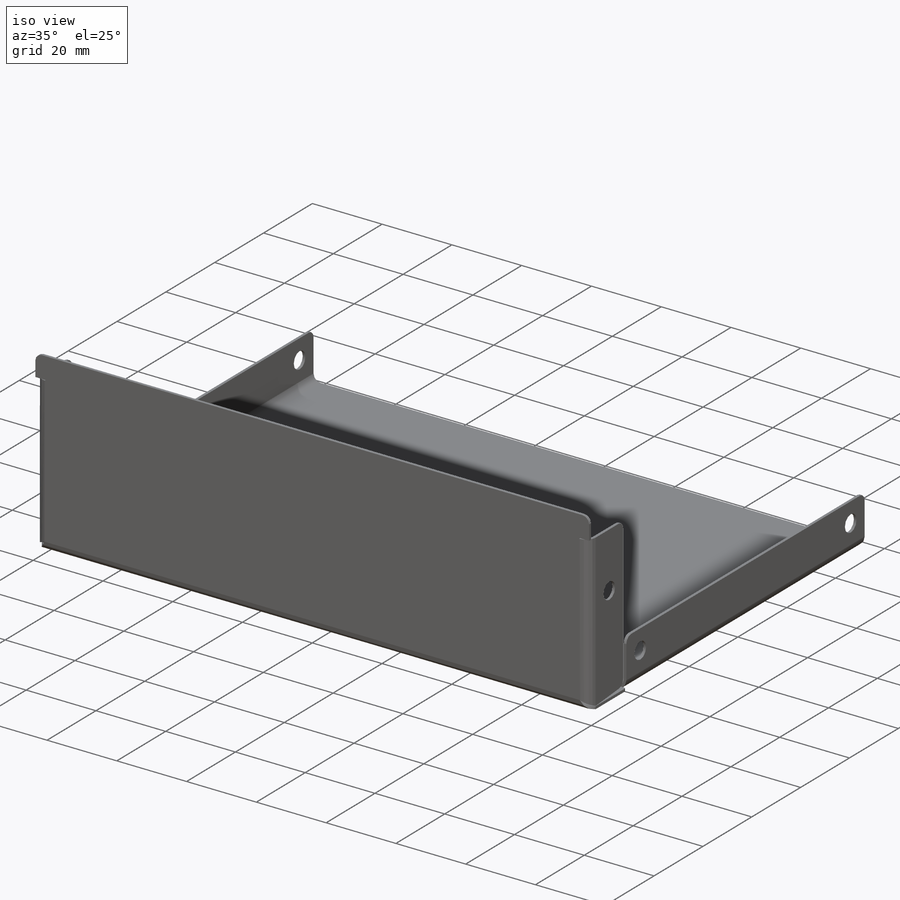
[diagram: iso view]
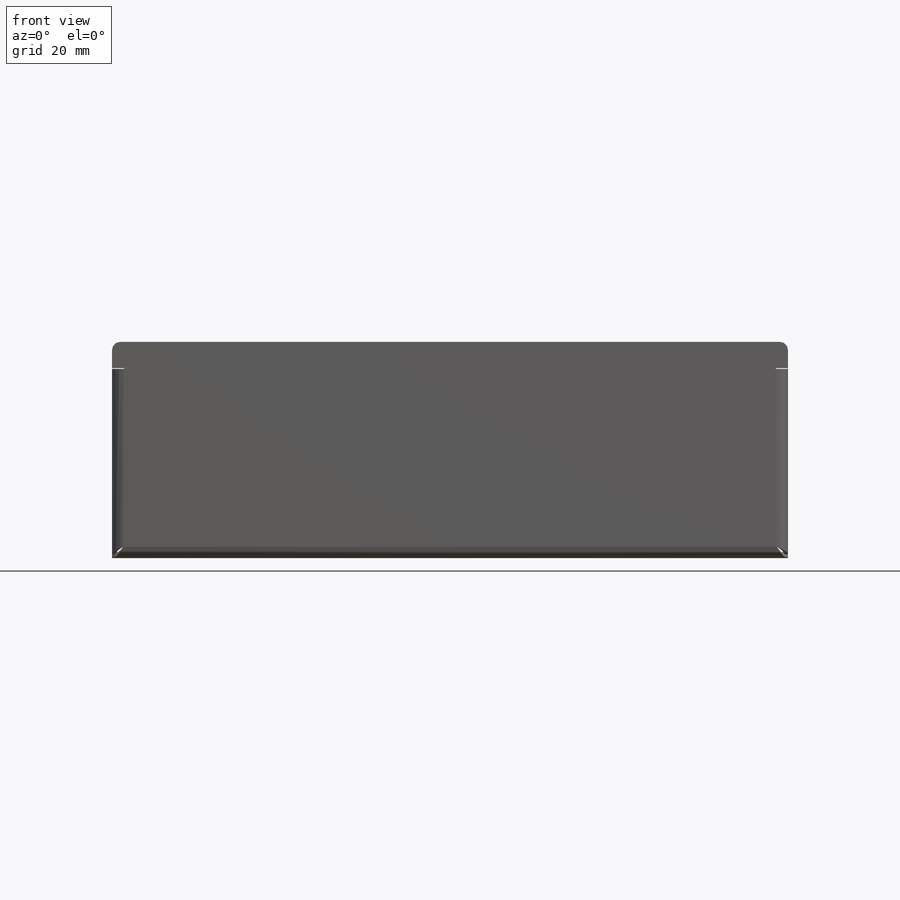
[diagram: front view]
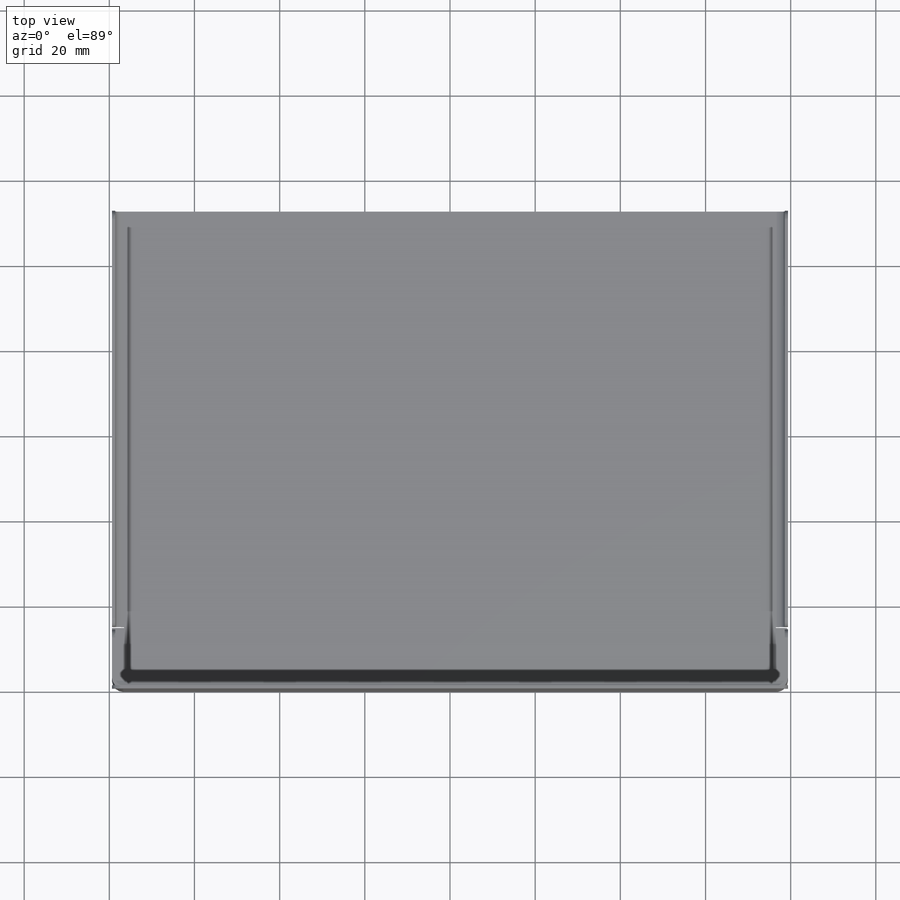
[diagram: top view]
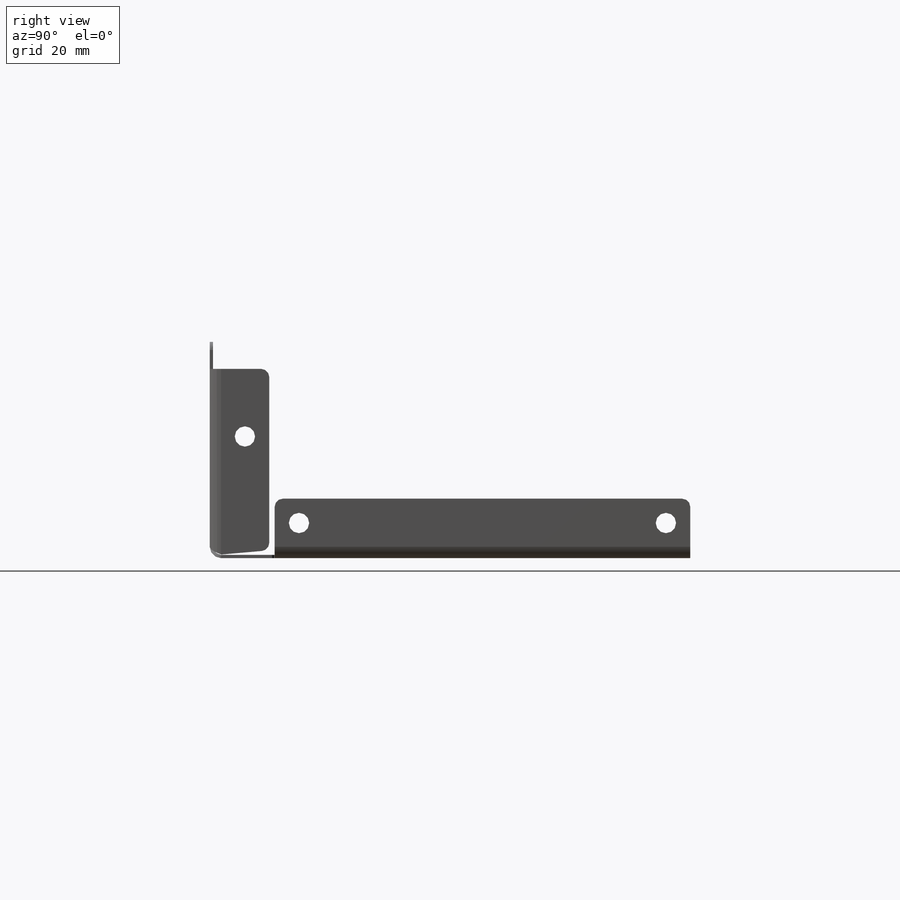
[diagram: right view]
SOLIDWORKS PART (.sldprt)
format: sldprt  version: not decoded by parser v0  size: 495,616 bytes
history: native  units: mm
features: sketch x9, sheet_metal_op x2, cut_extrude x2, fillet x2, material x1 + 5 further entries (+12 scaffold rows collapsed)
feature tree (33):
  scaffold x12  (default folders/planes/origin — collapsed)
  material  "Material <not specified>"
  sketch  "Sketch1"  dims[c1.D1=25.4mm c1.D2=177.8mm c2.D1=3.175mm c2.D3=50.8mm c3.D1=1.4732mm c3.D2=114.3mm]
  sheet_metal_op  "Sheet-Metal1"
  sheet_metal_op  "Base-Flange1"
  sketch  "Sketch5"  dims[D1=15.24mm D2=13.97mm]
  sketch  "Sketch25"  dims[c1.D1=15.24mm c1.D2=13.97mm c2.D1=1.905mm c2.D4=90.0deg c2.D5=4.0 c2.D8=0.3048mm c2.D9=0.3048mm c3.D1=1.905mm c3.D4=90.0deg c3.D5=9.0 c3.D8=0.3048mm c3.D9=0.3048mm c4.D1=1.905mm c4.D2=500.0mm c4.D3=0.0mm c4.D6=10.0mm c4.D7=13.97mm c4.D8=1.27mm]
  sketch  "Sketch20"  dims[D1=13.97mm D2=6.35mm]
  sketch  "Sketch23"  dims[c1.D1=6.35mm c1.D2=13.97mm c2.D1=1.905mm c2.D4=90.0deg c2.D5=5.0 c2.D8=0.3048mm c2.D9=0.3048mm c3.D1=1.905mm c3.D4=90.0deg c3.D5=8.0 c3.D8=0.3048mm c3.D9=0.3048mm c4.D1=1.905mm c4.D2=500.0mm c4.D3=0.0mm c4.D6=10.0mm c4.D7=13.97mm c4.D8=1.0mm]
  sketch  "Sketch12"  dims[c1.D3=4.7752mm c1.D1=50.8mm c1.D2=8.255mm c2.D1=25.4mm c2.D2=8.255mm c2.D4=8.255mm c2.D5=5.715mm c3.D1=1.4732mm c3.D6=63.5mm c3.D5=15.875mm c3.D4=8.255mm c4.D6=5.715mm c4.D7=5.715mm c4.D5=15.875mm c5.D6=5.715mm]
  cut_extrude  "Cut-Extrude5"  [1 undecoded]
  fillet  "Fillet2"  Radius=0.508mm
  sketch  "Sketch26"  dims[c1.D1=10.8458mm c2.D1=5.0deg]
  cut_extrude  "Cut-Extrude6"  [1 undecoded]
  fillet  "Fillet3"  Radius=1.905mm
  "Flat-Pattern1"
  sketch  "Bend-Lines1"
  sketch  "Bounding-Box1"
  "Flatten-<EdgeBend3>1"
  "Flatten-<EdgeBend4>1"
  "Flatten-<EdgeBend5>1"
  "Flatten-<EdgeBend6>1"
decode coverage: 9 of 15 modeling features carry decoded parameters; 5 rows unclassified (native names shown)
note: 2 parameter values undecoded
note: suppression state not decoded; provenance and decode notes live in map.json
